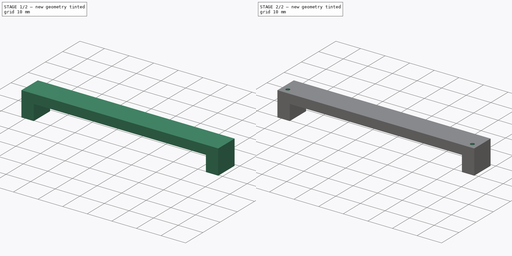
[diagram: build sequence overview — one tinted view per stage of 2, left to right]
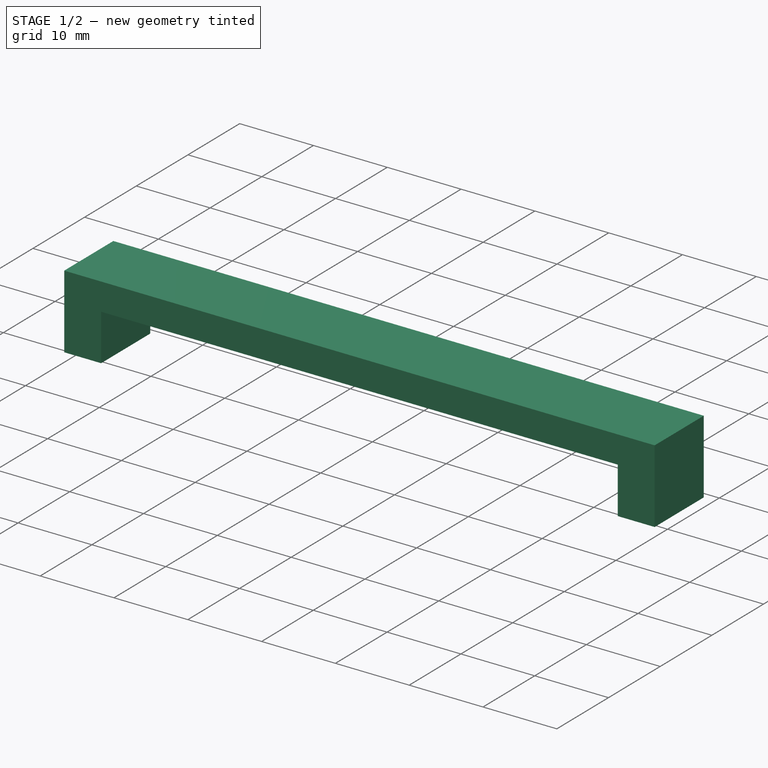
[diagram: stage 1 of 2 — iso view after this stage's code; geometry added in this stage tinted green]
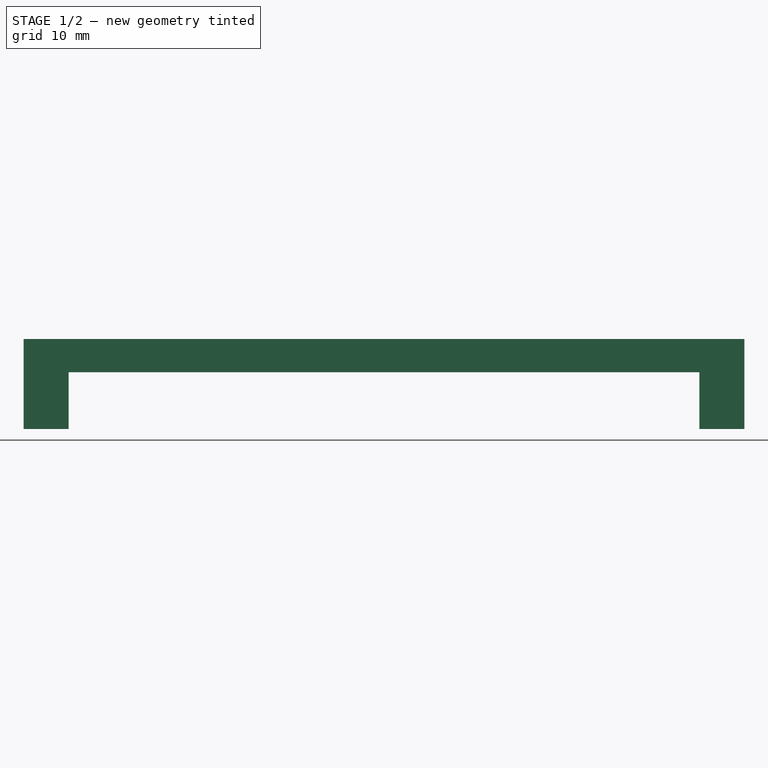
[diagram: stage 1 of 2 — front view after this stage's code; geometry added in this stage tinted green]
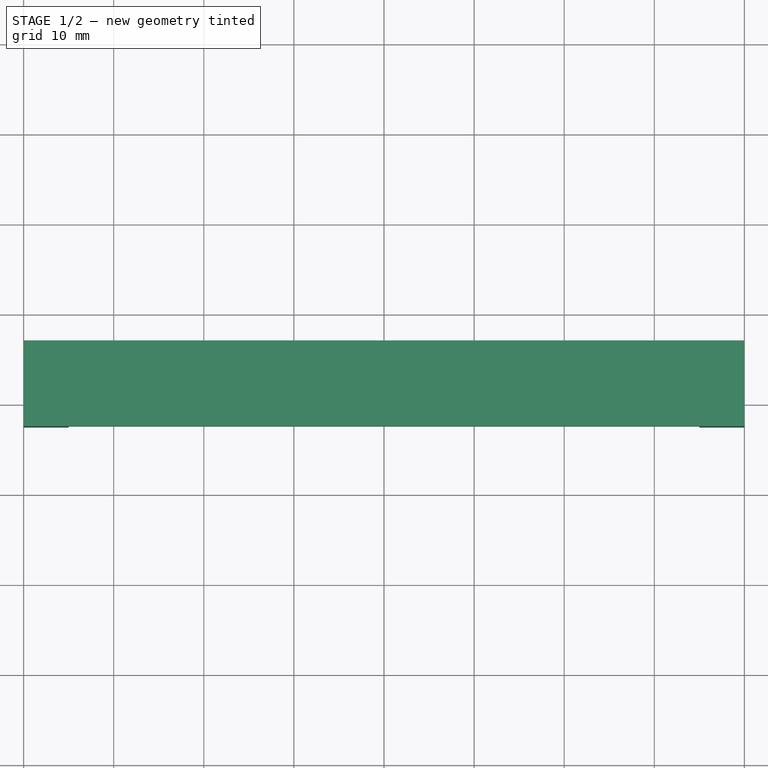
[diagram: stage 1 of 2 — top view after this stage's code; geometry added in this stage tinted green]
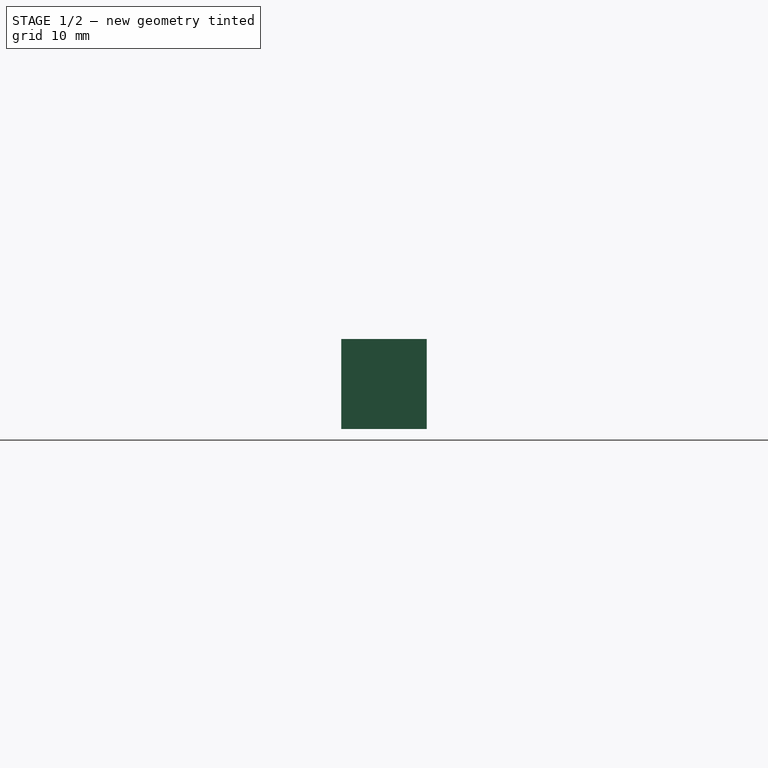
[diagram: stage 1 of 2 — right view after this stage's code; geometry added in this stage tinted green]
FCSTD DOCUMENT  (FreeCAD 1.0R39319 (Git))
Label: clamp-02
License: All rights reserved
LicenseURL: http://en.wikipedia.org/wiki/All_rights_reserved
objects: Sketcher::SketchObject×3, PartDesign::Pad×1, PartDesign::Pocket×1, PartDesign::Hole×1, PartDesign::Body×1, App::Part×1
note: 16 computed .brp shape members not serialized (recipe doc carries the construction recipe); baked Part::Feature solids carry a one-line shape summary decoded from their .brp

FEATURE [Sketcher::SketchObject] Sketch
  ArcFitTolerance = 1e-06
  AttachmentSupport = -> [XY_Plane001]
  FullyConstrained = true
  MakeInternals = false
  MapMode = 5
  sketch-geometry (6):
    g0: LineSegment [constr] StartX=-37.5 StartY=0 StartZ=0 EndX=37.5 EndY=0 EndZ=0
    g1: LineSegment StartX=-40 StartY=-2.5 StartZ=0 EndX=40 EndY=-2.5 EndZ=0
    g2: LineSegment StartX=40 StartY=-2.5 StartZ=0 EndX=40 EndY=7 EndZ=0
    g3: LineSegment StartX=40 StartY=7 StartZ=0 EndX=-40 EndY=7 EndZ=0
    g4: LineSegment StartX=-40 StartY=7 StartZ=0 EndX=-40 EndY=-2.5 EndZ=0
    g5: GeomPoint [constr] X=0 Y=0 Z=0
  constraints (17):
    c: Distance(g0) = 75
    c: PointOnObject(g0,g-1)
    c: Symmetric(g0,g0,g-1)
    c: Coincident(g1,g2)
    c: Coincident(g2,g3)
    c: Coincident(g3,g4)
    c: Coincident(g4,g1)
    c: Horizontal(g1)
    c: Horizontal(g3)
    c: Vertical(g2)
    c: Vertical(g4)
    c: Symmetric(g3,g1,g5)
    c: Distance(g2,g4) = 80
    c: Coincident(g5,g-1)
    c: DistanceY(g1,g5) = 2.5
    c: DistanceY(g5,g3) = 7
    c: Symmetric(g1,g1,g-2)
FEATURE [PartDesign::Pad] Pad
  Direction = (0,0,1)
  Length = 10
  Length2 = 10
  Profile = -> Sketch
  ReferenceAxis = -> Sketch [N_Axis]
  Suppressed = false
  Type = 0
FEATURE [Sketcher::SketchObject] Sketch001
  ArcFitTolerance = 1e-06
  FullyConstrained = false
  MakeInternals = false
  MapMode = 5
  sketch-geometry (6):
    g0: LineSegment [constr] StartX=-37.5 StartY=0 StartZ=0 EndX=37.5 EndY=0 EndZ=0
    g1: LineSegment StartX=-35 StartY=-13.944 StartZ=0 EndX=35 EndY=-13.944 EndZ=0
    g2: LineSegment StartX=35 StartY=-13.944 StartZ=0 EndX=35 EndY=11.056 EndZ=0
    g3: LineSegment StartX=35 StartY=11.056 StartZ=0 EndX=-35 EndY=11.056 EndZ=0
    g4: LineSegment StartX=-35 StartY=11.056 StartZ=0 EndX=-35 EndY=-13.944 EndZ=0
    g5: GeomPoint [constr] X=0 Y=0 Z=0
  constraints (15):
    c: Distance(g0) = 75
    c: PointOnObject(g0,g-1)
    c: Symmetric(g0,g0,g-1)
    c: Coincident(g1,g2)
    c: Coincident(g2,g3)
    c: Coincident(g3,g4)
    c: Coincident(g4,g1)
    c: Horizontal(g1)
    c: Horizontal(g3)
    c: Vertical(g2)
    c: Vertical(g4)
    c: Symmetric(g3,g1,g5)
    c: Distance(g2,g4) = 70
    c: Distance(g1,g3) = 25
    c: Coincident(g5,g-1)
FEATURE [PartDesign::Pocket] Pocket
  BaseFeature = -> Pad
  Direction = (0,0,-1)
  Length = 6.3
  Length2 = 5
  Profile = -> Sketch001
  ReferenceAxis = -> Sketch001 [N_Axis]
  Reversed = true
  Suppressed = false
  Type = 0
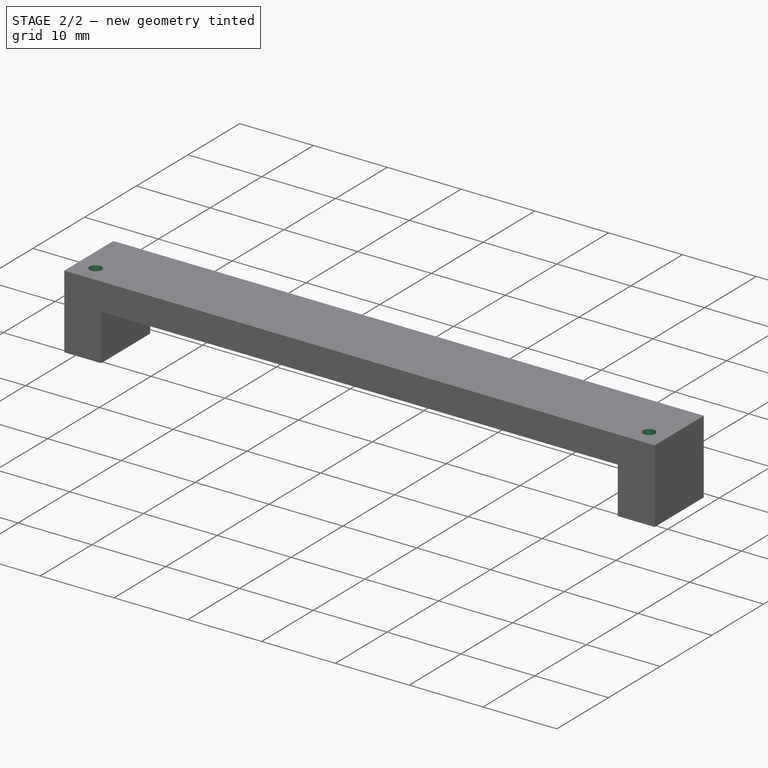
[diagram: stage 2 of 2 — iso view after this stage's code; geometry added in this stage tinted green]
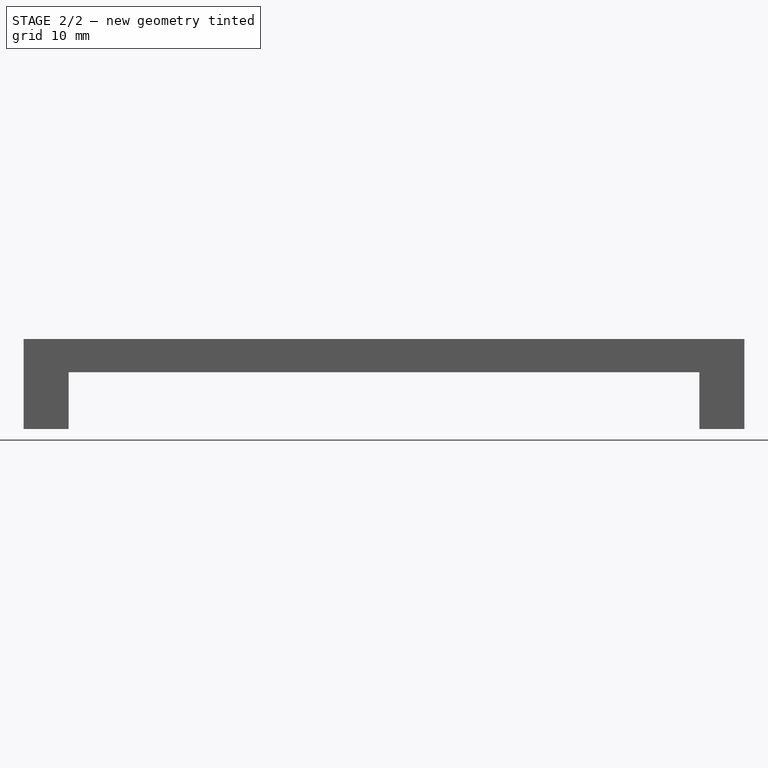
[diagram: stage 2 of 2 — front view after this stage's code; geometry added in this stage tinted green]
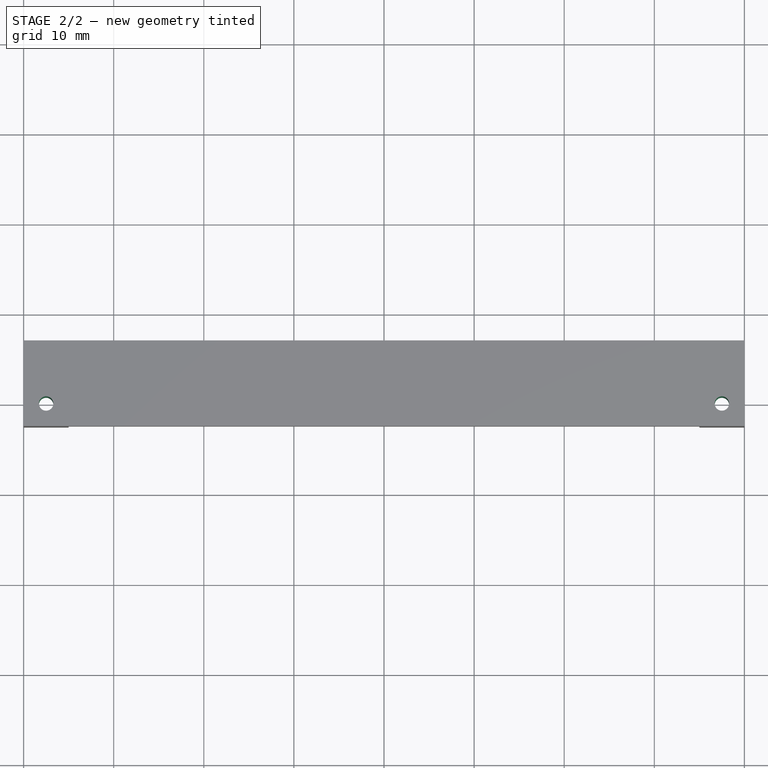
[diagram: stage 2 of 2 — top view after this stage's code; geometry added in this stage tinted green]
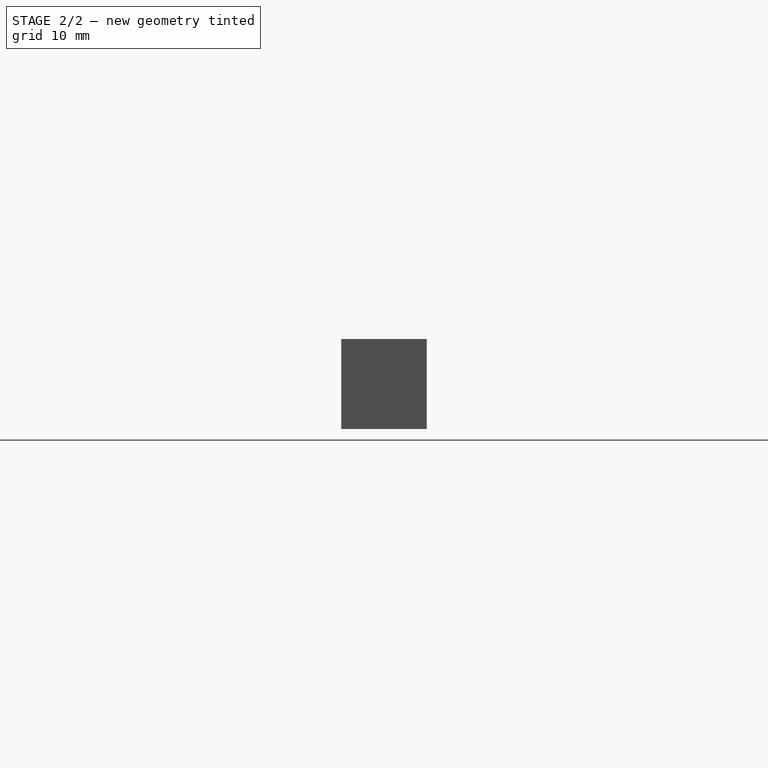
[diagram: stage 2 of 2 — right view after this stage's code; geometry added in this stage tinted green]
FEATURE [Sketcher::SketchObject] Sketch002
  ArcFitTolerance = 1e-06
  FullyConstrained = true
  MakeInternals = false
  MapMode = 5
  sketch-geometry (3):
    g0: LineSegment [constr] StartX=-37.5 StartY=0 StartZ=0 EndX=37.5 EndY=0 EndZ=0
    g1: Circle CenterX=37.5 CenterY=0 CenterZ=0 NormalX=0 NormalY=0 NormalZ=1 AngleXU=0 Radius=1
    g2: Circle CenterX=-37.5 CenterY=0 CenterZ=0 NormalX=0 NormalY=0 NormalZ=1 AngleXU=0 Radius=1
  constraints (7):
    c: Distance(g0) = 75
    c: PointOnObject(g0,g-1)
    c: Symmetric(g0,g0,g-1)
    c: Diameter(g1) = 2
    c: Coincident(g1,g0)
    c: Diameter(g2) = 2
    c: Coincident(g2,g0)
FEATURE [PartDesign::Hole] Hole
  BaseFeature = -> Pocket
  CustomThreadClearance = 0
  Depth = 163.984
  DepthType = 1
  Diameter = 1.6
  DrillForDepth = false
  DrillPoint = 1
  DrillPointAngle = 118
  HoleCutCountersinkAngle = 90
  HoleCutCustomValues = false
  HoleCutDepth = 0
  HoleCutDiameter = 6.1
  HoleCutType = 0
  ModelThread = false
  Profile = -> Sketch002
  Reversed = true
  Suppressed = false
  Tapered = false
  TaperedAngle = 90
  ThreadClass = 0
  ThreadDepth = 163.984
  ThreadDepthType = 0
  ThreadDirection = 0
  ThreadFit = 0
  ThreadSize = 6
  ThreadType = 1
  Threaded = true
  UseCustomThreadClearance = false
FEATURE [PartDesign::Body] Body
  AllowCompound = false
  Group = -> [Sketch,Pad,Sketch001,Pocket,Sketch002,Hole]
  Origin = -> Origin001
  Tip = -> Hole
FEATURE [App::Part] Part
  Group = -> [Body]
  Origin = -> Origin
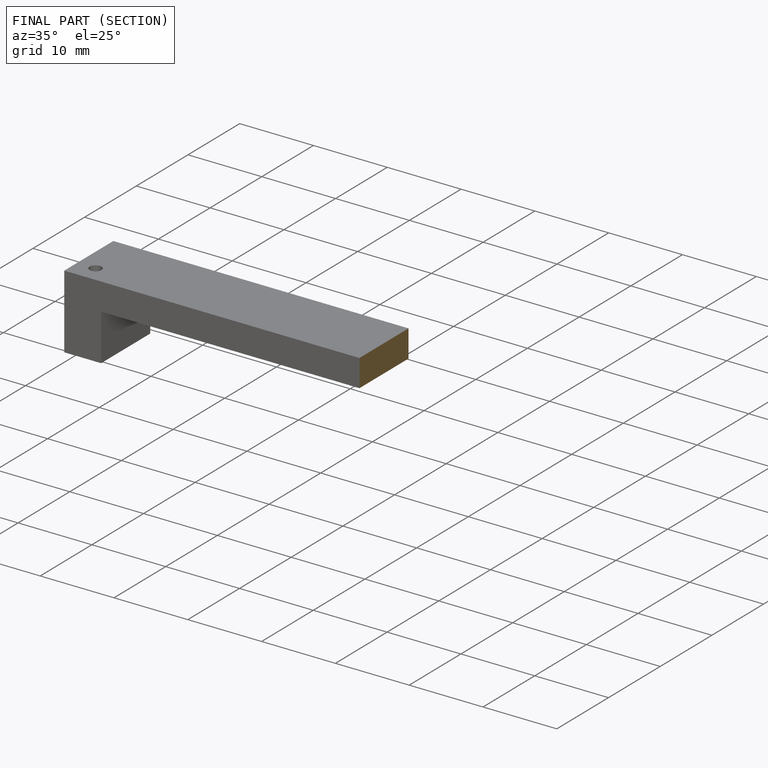
[diagram: finished part — half-section view (interior)]
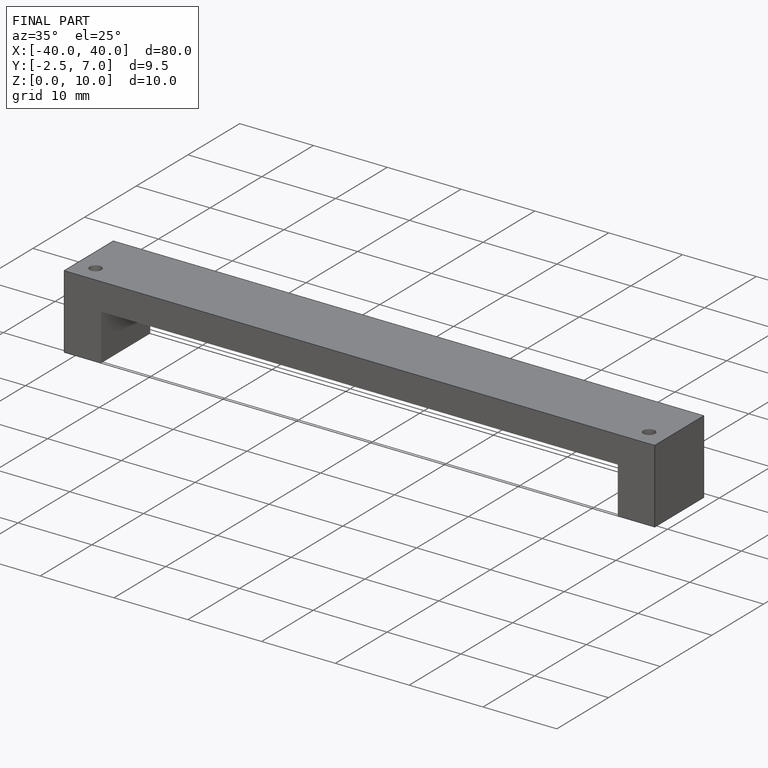
[diagram: finished part — iso view with bounding-box wireframe]
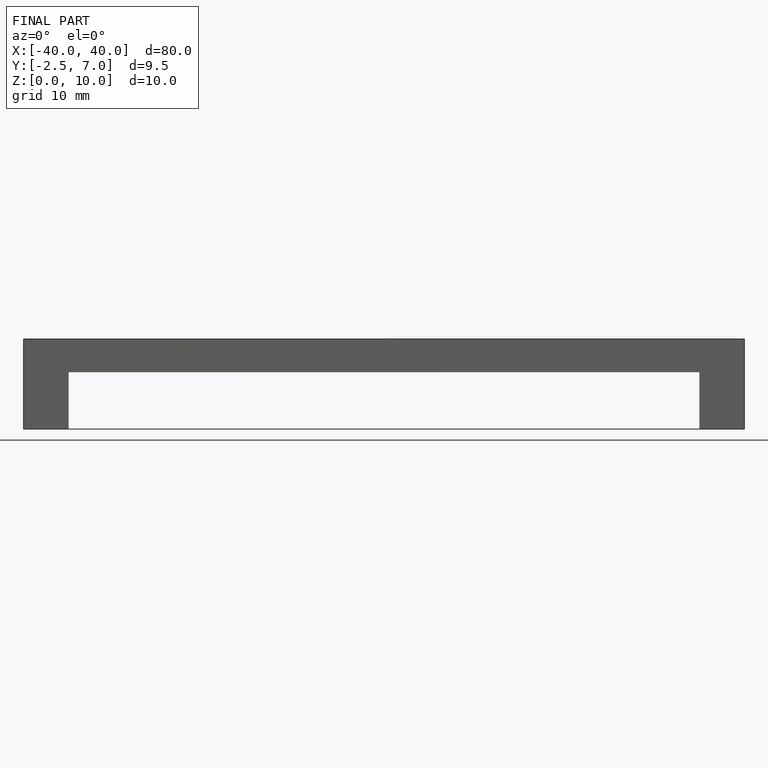
[diagram: finished part — front view with bounding-box wireframe]
